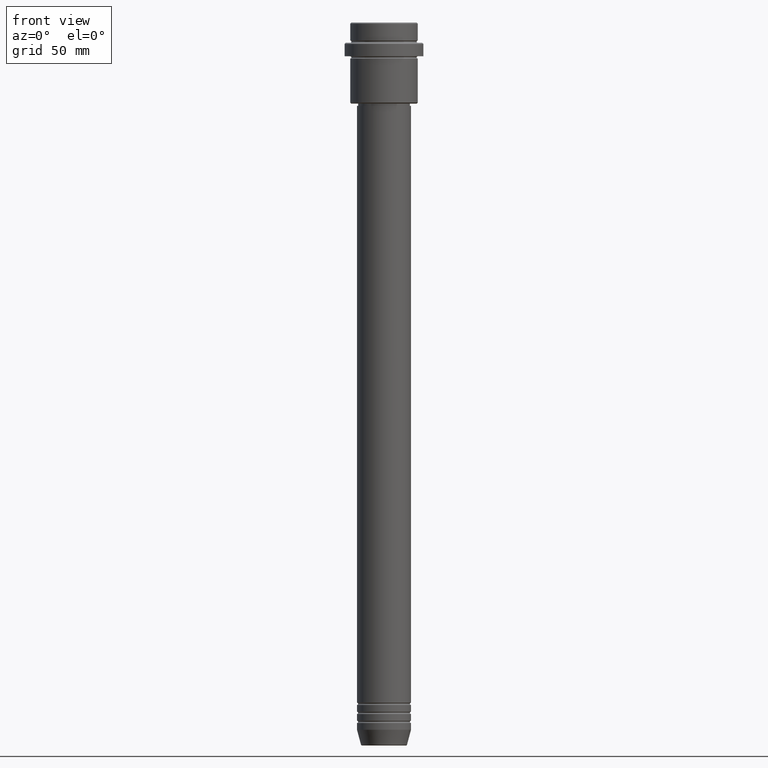
[diagram: clean part render]
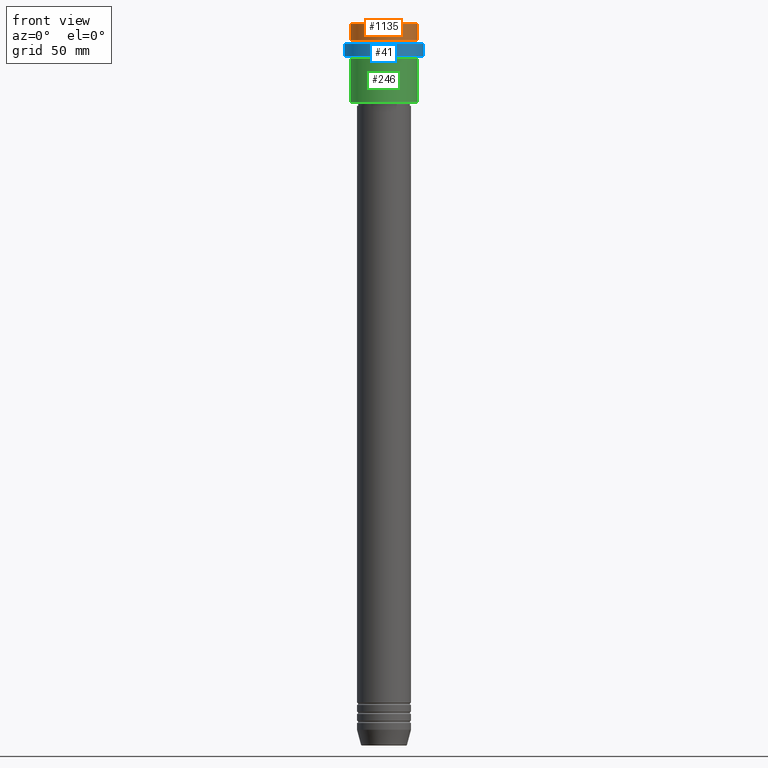
[diagram: same view with three faces highlighted in distinct colors, each labeled with its STEP entity id]
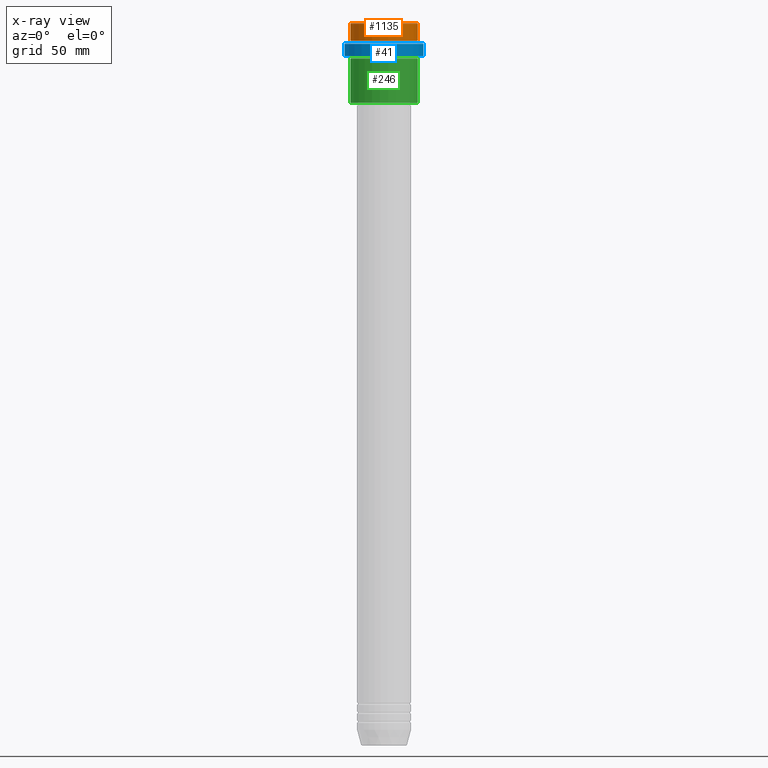
[diagram: x-ray of the same camera — body ghosted, the three highlighted faces saturated]
A machine part, front view with three faces highlighted in distinct colors.
The next image is the same camera in x-ray (body ghosted, the three faces saturated) — at least one of them is partly hidden behind the body in this view.
Their STEP definitions:

[orange] entity #1135 — the highlighted cylindrical surface (edge-blend (fillet) strip) has radius 15 mm, axis along (-0, -0, 1).
#21 = LINE ( 'NONE', #1006, #404 ) ;
#29 = VERTEX_POINT ( 'NONE', #87 ) ;
#87 = CARTESIAN_POINT ( 'NONE',  ( -15.00000000000000000, 1.836970198721029589E-15, -0.5000000000000662803 ) ) ;
#132 = VERTEX_POINT ( 'NONE', #758 ) ;
#133 = DIRECTION ( 'NONE',  ( 0.000000000000000000, 0.000000000000000000, -1.000000000000000000 ) ) ;
#152 = DIRECTION ( 'NONE',  ( 1.000000000000000000, 0.000000000000000000, 0.000000000000000000 ) ) ;
#259 = EDGE_CURVE ( 'NONE', #572, #29, #866, .T. ) ;
#283 = VERTEX_POINT ( 'NONE', #1375 ) ;
#361 = AXIS2_PLACEMENT_3D ( 'NONE', #782, #133, #577 ) ;
#372 = EDGE_CURVE ( 'NONE', #572, #132, #921, .T. ) ;
#387 = ORIENTED_EDGE ( 'NONE', *, *, #372, .T. ) ;
#395 = ORIENTED_EDGE ( 'NONE', *, *, #623, .T. ) ;
#400 = DIRECTION ( 'NONE',  ( 1.000000000000000000, 0.000000000000000000, 0.000000000000000000 ) ) ;
#404 = VECTOR ( 'NONE', #1097, 1000.000000000000000 ) ;
#572 = VERTEX_POINT ( 'NONE', #1168 ) ;
#577 = DIRECTION ( 'NONE',  ( 1.000000000000000000, 0.000000000000000000, 0.000000000000000000 ) ) ;
#601 = CARTESIAN_POINT ( 'NONE',  ( 0.000000000000000000, 0.000000000000000000, 0.000000000000000000 ) ) ;
#603 = VECTOR ( 'NONE', #1088, 1000.000000000000000 ) ;
#623 = EDGE_CURVE ( 'NONE', #132, #283, #21, .T. ) ;
#699 = CIRCLE ( 'NONE', #361, 15.00000000000000000 ) ;
#758 = CARTESIAN_POINT ( 'NONE',  ( 15.00000000000000000, 0.000000000000000000, -7.999999999999998224 ) ) ;
#782 = CARTESIAN_POINT ( 'NONE',  ( 0.000000000000000000, 0.000000000000000000, -0.5000000000000662803 ) ) ;
#795 = CYLINDRICAL_SURFACE ( 'NONE', #1337, 15.00000000000000000 ) ;
#813 = EDGE_LOOP ( 'NONE', ( #873, #387, #395, #1324 ) ) ;
#866 = LINE ( 'NONE', #1298, #603 ) ;
#873 = ORIENTED_EDGE ( 'NONE', *, *, #259, .F. ) ;
#921 = CIRCLE ( 'NONE', #1038, 15.00000000000000000 ) ;
#947 = CARTESIAN_POINT ( 'NONE',  ( 0.000000000000000000, 0.000000000000000000, -7.999999999999998224 ) ) ;
#995 = FACE_OUTER_BOUND ( 'NONE', #813, .T. ) ;
#1006 = CARTESIAN_POINT ( 'NONE',  ( 15.00000000000000000, 0.000000000000000000, 0.000000000000000000 ) ) ;
#1035 = DIRECTION ( 'NONE',  ( -0.000000000000000000, -0.000000000000000000, 1.000000000000000000 ) ) ;
#1038 = AXIS2_PLACEMENT_3D ( 'NONE', #947, #1035, #400 ) ;
#1076 = EDGE_CURVE ( 'NONE', #283, #29, #699, .T. ) ;
#1088 = DIRECTION ( 'NONE',  ( -0.000000000000000000, -0.000000000000000000, 1.000000000000000000 ) ) ;
#1097 = DIRECTION ( 'NONE',  ( -0.000000000000000000, -0.000000000000000000, 1.000000000000000000 ) ) ;
#1135 = ADVANCED_FACE ( 'NONE', ( #995 ), #795, .T. ) ;
#1136 = DIRECTION ( 'NONE',  ( -0.000000000000000000, -0.000000000000000000, 1.000000000000000000 ) ) ;
#1168 = CARTESIAN_POINT ( 'NONE',  ( -15.00000000000000000, 1.836970198721029589E-15, -7.999999999999998224 ) ) ;
#1298 = CARTESIAN_POINT ( 'NONE',  ( -15.00000000000000000, 1.836970198721029589E-15, 0.000000000000000000 ) ) ;
#1324 = ORIENTED_EDGE ( 'NONE', *, *, #1076, .T. ) ;
#1337 = AXIS2_PLACEMENT_3D ( 'NONE', #601, #1136, #152 ) ;
#1375 = CARTESIAN_POINT ( 'NONE',  ( 15.00000000000000000, 0.000000000000000000, -0.5000000000000662803 ) ) ;

[blue] entity #41 — the highlighted cylindrical surface (partial cylindrical patch) has radius 17.5 mm, axis along (-0, -0, 1).
#7 = CARTESIAN_POINT ( 'NONE',  ( 0.000000000000000000, 0.000000000000000000, -9.500000000000000000 ) ) ;
#41 = ADVANCED_FACE ( 'NONE', ( #1393 ), #830, .T. ) ;
#97 = CARTESIAN_POINT ( 'NONE',  ( 17.50000000000000000, 0.000000000000000000, -9.500000000000000000 ) ) ;
#107 = ORIENTED_EDGE ( 'NONE', *, *, #1116, .T. ) ;
#121 = DIRECTION ( 'NONE',  ( 1.000000000000000000, 0.000000000000000000, 0.000000000000000000 ) ) ;
#127 = EDGE_CURVE ( 'NONE', #937, #703, #767, .T. ) ;
#135 = VERTEX_POINT ( 'NONE', #97 ) ;
#151 = EDGE_CURVE ( 'NONE', #135, #703, #1214, .T. ) ;
#158 = EDGE_LOOP ( 'NONE', ( #1119, #1280, #107, #817 ) ) ;
#290 = AXIS2_PLACEMENT_3D ( 'NONE', #418, #1048, #390 ) ;
#296 = CARTESIAN_POINT ( 'NONE',  ( -17.50000000000000000, 2.143131898507868248E-15, -15.00000000000000000 ) ) ;
#390 = DIRECTION ( 'NONE',  ( 1.000000000000000000, 0.000000000000000000, 0.000000000000000000 ) ) ;
#403 = VECTOR ( 'NONE', #1001, 1000.000000000000000 ) ;
#418 = CARTESIAN_POINT ( 'NONE',  ( 0.000000000000000000, 0.000000000000000000, 0.000000000000000000 ) ) ;
#443 = CARTESIAN_POINT ( 'NONE',  ( 17.50000000000000000, 0.000000000000000000, 0.000000000000000000 ) ) ;
#445 = VERTEX_POINT ( 'NONE', #1405 ) ;
#466 = DIRECTION ( 'NONE',  ( -0.000000000000000000, -0.000000000000000000, 1.000000000000000000 ) ) ;
#541 = CIRCLE ( 'NONE', #1173, 17.50000000000000000 ) ;
#630 = EDGE_CURVE ( 'NONE', #937, #445, #541, .T. ) ;
#651 = DIRECTION ( 'NONE',  ( 0.000000000000000000, 0.000000000000000000, -1.000000000000000000 ) ) ;
#655 = VECTOR ( 'NONE', #874, 1000.000000000000000 ) ;
#664 = LINE ( 'NONE', #443, #655 ) ;
#703 = VERTEX_POINT ( 'NONE', #989 ) ;
#752 = DIRECTION ( 'NONE',  ( 1.000000000000000000, 0.000000000000000000, 0.000000000000000000 ) ) ;
#767 = LINE ( 'NONE', #1186, #403 ) ;
#817 = ORIENTED_EDGE ( 'NONE', *, *, #151, .T. ) ;
#830 = CYLINDRICAL_SURFACE ( 'NONE', #290, 17.50000000000000000 ) ;
#874 = DIRECTION ( 'NONE',  ( -0.000000000000000000, -0.000000000000000000, 1.000000000000000000 ) ) ;
#937 = VERTEX_POINT ( 'NONE', #296 ) ;
#989 = CARTESIAN_POINT ( 'NONE',  ( -17.50000000000000000, 2.143131898507868248E-15, -9.500000000000000000 ) ) ;
#1001 = DIRECTION ( 'NONE',  ( -0.000000000000000000, -0.000000000000000000, 1.000000000000000000 ) ) ;
#1048 = DIRECTION ( 'NONE',  ( -0.000000000000000000, -0.000000000000000000, 1.000000000000000000 ) ) ;
#1116 = EDGE_CURVE ( 'NONE', #445, #135, #664, .T. ) ;
#1118 = CARTESIAN_POINT ( 'NONE',  ( 0.000000000000000000, 0.000000000000000000, -15.00000000000000000 ) ) ;
#1119 = ORIENTED_EDGE ( 'NONE', *, *, #127, .F. ) ;
#1173 = AXIS2_PLACEMENT_3D ( 'NONE', #1118, #466, #121 ) ;
#1186 = CARTESIAN_POINT ( 'NONE',  ( -17.50000000000000000, 2.143131898507868248E-15, 0.000000000000000000 ) ) ;
#1214 = CIRCLE ( 'NONE', #1236, 17.50000000000000000 ) ;
#1236 = AXIS2_PLACEMENT_3D ( 'NONE', #7, #651, #752 ) ;
#1280 = ORIENTED_EDGE ( 'NONE', *, *, #630, .T. ) ;
#1393 = FACE_OUTER_BOUND ( 'NONE', #158, .T. ) ;
#1405 = CARTESIAN_POINT ( 'NONE',  ( 17.50000000000000000, 0.000000000000000000, -15.00000000000000000 ) ) ;

[green] entity #246 — the highlighted cylindrical surface (edge-blend (fillet) strip) has radius 15 mm, axis along (-0, -0, 1).
#62 = VERTEX_POINT ( 'NONE', #1259 ) ;
#110 = EDGE_CURVE ( 'NONE', #274, #1346, #548, .T. ) ;
#168 = CIRCLE ( 'NONE', #467, 15.00000000000000000 ) ;
#182 = EDGE_CURVE ( 'NONE', #417, #62, #253, .T. ) ;
#240 = VECTOR ( 'NONE', #1101, 1000.000000000000000 ) ;
#246 = ADVANCED_FACE ( 'NONE', ( #1399 ), #861, .T. ) ;
#247 = DIRECTION ( 'NONE',  ( -0.000000000000000000, -0.000000000000000000, 1.000000000000000000 ) ) ;
#253 = LINE ( 'NONE', #986, #240 ) ;
#274 = VERTEX_POINT ( 'NONE', #1157 ) ;
#275 = CARTESIAN_POINT ( 'NONE',  ( -15.00000000000000000, 1.836970198721029589E-15, -35.50000000000001421 ) ) ;
#320 = CARTESIAN_POINT ( 'NONE',  ( 0.000000000000000000, 0.000000000000000000, 0.000000000000000000 ) ) ;
#342 = DIRECTION ( 'NONE',  ( -0.000000000000000000, -0.000000000000000000, 1.000000000000000000 ) ) ;
#417 = VERTEX_POINT ( 'NONE', #275 ) ;
#467 = AXIS2_PLACEMENT_3D ( 'NONE', #1411, #1391, #1183 ) ;
#470 = EDGE_CURVE ( 'NONE', #417, #274, #168, .T. ) ;
#520 = AXIS2_PLACEMENT_3D ( 'NONE', #1413, #247, #564 ) ;
#548 = LINE ( 'NONE', #1294, #757 ) ;
#564 = DIRECTION ( 'NONE',  ( 1.000000000000000000, 0.000000000000000000, 0.000000000000000000 ) ) ;
#613 = ORIENTED_EDGE ( 'NONE', *, *, #110, .T. ) ;
#642 = DIRECTION ( 'NONE',  ( 1.000000000000000000, 0.000000000000000000, 0.000000000000000000 ) ) ;
#684 = ORIENTED_EDGE ( 'NONE', *, *, #1091, .F. ) ;
#746 = DIRECTION ( 'NONE',  ( -0.000000000000000000, -0.000000000000000000, 1.000000000000000000 ) ) ;
#757 = VECTOR ( 'NONE', #342, 1000.000000000000000 ) ;
#763 = CIRCLE ( 'NONE', #520, 15.00000000000000178 ) ;
#861 = CYLINDRICAL_SURFACE ( 'NONE', #924, 15.00000000000000000 ) ;
#924 = AXIS2_PLACEMENT_3D ( 'NONE', #320, #746, #642 ) ;
#986 = CARTESIAN_POINT ( 'NONE',  ( -15.00000000000000000, 1.836970198721029589E-15, 0.000000000000000000 ) ) ;
#998 = EDGE_LOOP ( 'NONE', ( #1348, #1169, #613, #684 ) ) ;
#1091 = EDGE_CURVE ( 'NONE', #62, #1346, #763, .T. ) ;
#1101 = DIRECTION ( 'NONE',  ( -0.000000000000000000, -0.000000000000000000, 1.000000000000000000 ) ) ;
#1157 = CARTESIAN_POINT ( 'NONE',  ( 15.00000000000000000, 0.000000000000000000, -35.50000000000001421 ) ) ;
#1169 = ORIENTED_EDGE ( 'NONE', *, *, #470, .T. ) ;
#1183 = DIRECTION ( 'NONE',  ( -1.000000000000000000, 0.000000000000000000, 0.000000000000000000 ) ) ;
#1259 = CARTESIAN_POINT ( 'NONE',  ( -15.00000000000000355, 1.836970198721029983E-15, -16.00000000000000000 ) ) ;
#1269 = CARTESIAN_POINT ( 'NONE',  ( 15.00000000000000178, 0.000000000000000000, -16.00000000000000000 ) ) ;
#1294 = CARTESIAN_POINT ( 'NONE',  ( 15.00000000000000000, 0.000000000000000000, 0.000000000000000000 ) ) ;
#1346 = VERTEX_POINT ( 'NONE', #1269 ) ;
#1348 = ORIENTED_EDGE ( 'NONE', *, *, #182, .F. ) ;
#1391 = DIRECTION ( 'NONE',  ( -0.000000000000000000, -0.000000000000000000, 1.000000000000000000 ) ) ;
#1399 = FACE_OUTER_BOUND ( 'NONE', #998, .T. ) ;
#1411 = CARTESIAN_POINT ( 'NONE',  ( 0.000000000000000000, 0.000000000000000000, -35.50000000000001421 ) ) ;
#1413 = CARTESIAN_POINT ( 'NONE',  ( 0.000000000000000000, 0.000000000000000000, -16.00000000000000000 ) ) ;